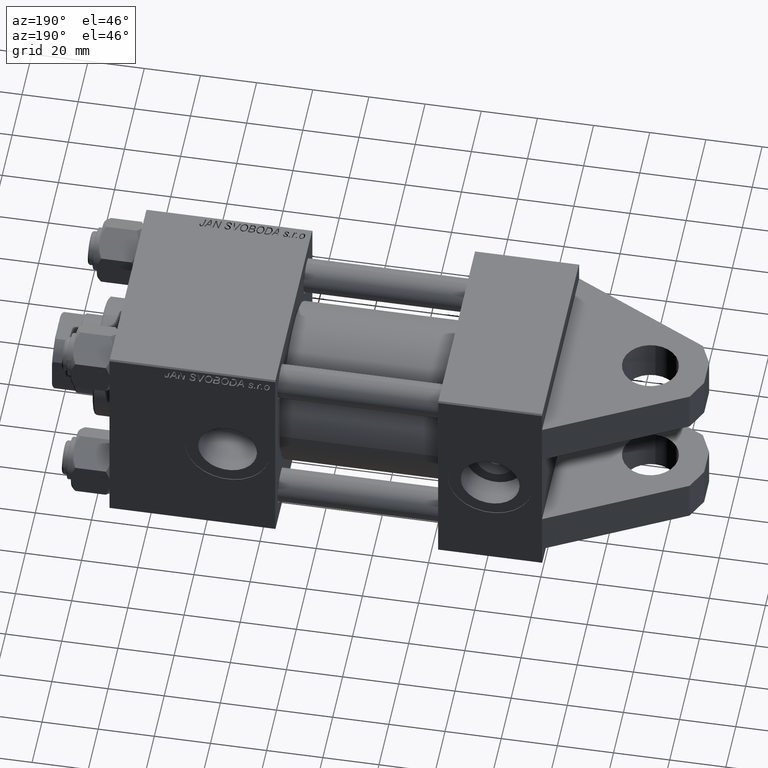
[diagram: clean part render]
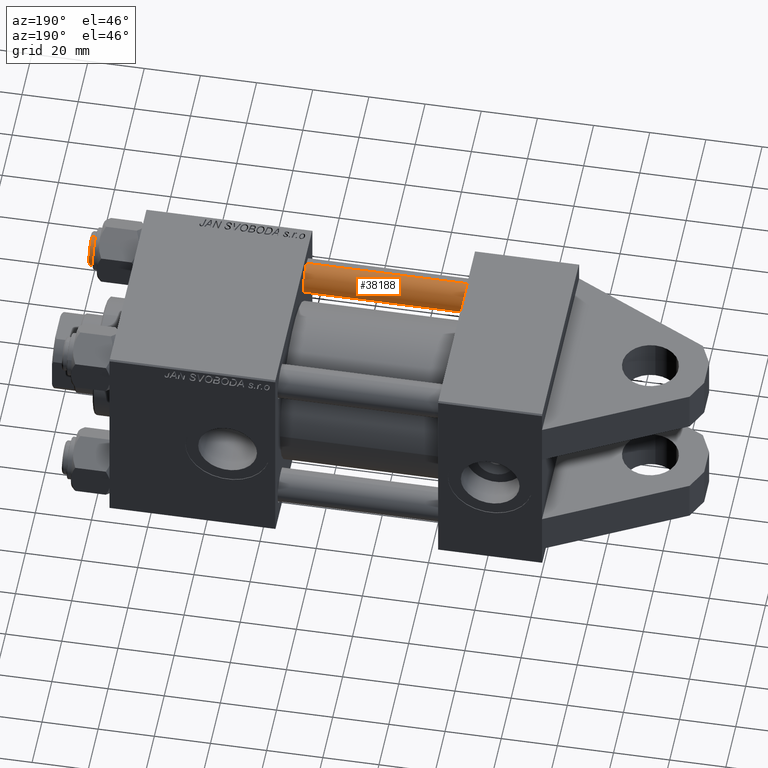
[diagram: same view with one face highlighted and labeled with its STEP entity id]
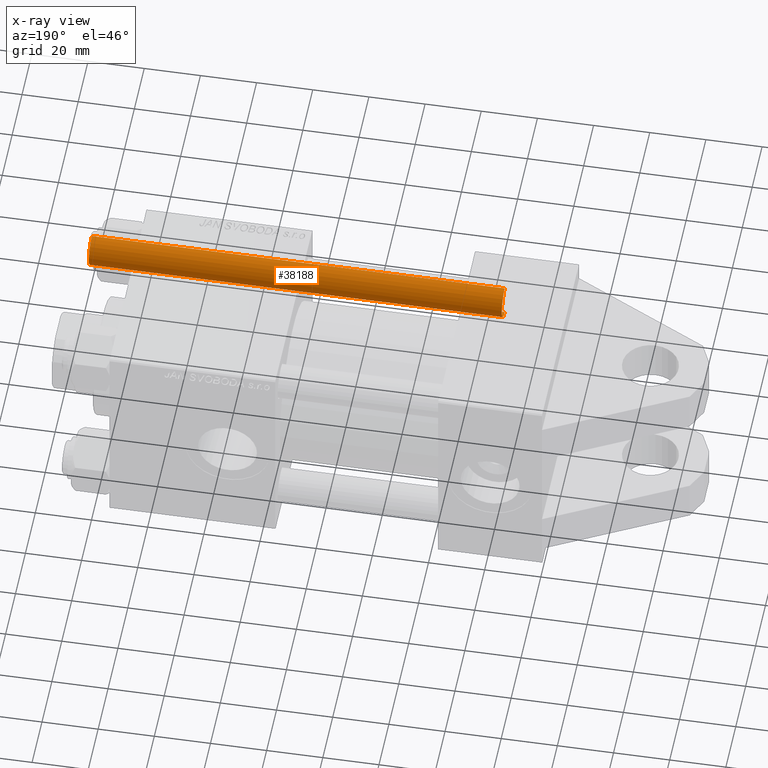
[diagram: x-ray of the same camera — body ghosted, the highlighted face saturated]
A machine part, auxiliary view. The second image highlights one B-rep face of the part: STEP entity #38188.
The next image is the same camera in x-ray: the body ghosted, the highlighted face saturated — about 0% of this face is hidden behind the body in this view.
In plain terms, the highlighted cylindrical surface (edge-blend (fillet) strip) has radius 6 mm, axis along (1, 0, 0).
Its self-contained STEP definition (entity closure, byte-faithful):
#817 = VECTOR ( 'NONE', #7151, 1000.000000000000000 ) ;
#3684 = DIRECTION ( 'NONE',  ( -0.000000000000000000, -0.000000000000000000, 1.000000000000000000 ) ) ;
#5804 = CARTESIAN_POINT ( 'NONE',  ( 0.000000000000000000, 0.000000000000000000, 147.5000000000000000 ) ) ;
#6967 = EDGE_LOOP ( 'NONE', ( #13263, #48382, #50579, #44360 ) ) ;
#6968 = DIRECTION ( 'NONE',  ( -1.000000000000000000, 0.000000000000000000, 0.000000000000000000 ) ) ;
#7151 = DIRECTION ( 'NONE',  ( -0.000000000000000000, -0.000000000000000000, -1.000000000000000000 ) ) ;
#7218 = DIRECTION ( 'NONE',  ( -0.000000000000000000, -0.000000000000000000, -1.000000000000000000 ) ) ;
#11239 = VERTEX_POINT ( 'NONE', #35937 ) ;
#11745 = CARTESIAN_POINT ( 'NONE',  ( 0.000000000000000000, 0.000000000000000000, 0.5000000000000281997 ) ) ;
#13263 = ORIENTED_EDGE ( 'NONE', *, *, #24427, .F. ) ;
#13859 = DIRECTION ( 'NONE',  ( 0.000000000000000000, 0.000000000000000000, -1.000000000000000000 ) ) ;
#15027 = CYLINDRICAL_SURFACE ( 'NONE', #44600, 6.000000000000000888 ) ;
#15689 = VERTEX_POINT ( 'NONE', #37794 ) ;
#17514 = EDGE_CURVE ( 'NONE', #18928, #15689, #49347, .T. ) ;
#18268 = DIRECTION ( 'NONE',  ( 1.000000000000000000, 0.000000000000000000, 0.000000000000000000 ) ) ;
#18928 = VERTEX_POINT ( 'NONE', #33868 ) ;
#19056 = AXIS2_PLACEMENT_3D ( 'NONE', #11745, #3684, #43977 ) ;
#22555 = CIRCLE ( 'NONE', #27547, 6.000000000000000888 ) ;
#24427 = EDGE_CURVE ( 'NONE', #48177, #11239, #26482, .T. ) ;
#26464 = FACE_OUTER_BOUND ( 'NONE', #6967, .T. ) ;
#26482 = LINE ( 'NONE', #34977, #817 ) ;
#27547 = AXIS2_PLACEMENT_3D ( 'NONE', #5804, #13859, #18268 ) ;
#32025 = EDGE_CURVE ( 'NONE', #48177, #18928, #22555, .T. ) ;
#33868 = CARTESIAN_POINT ( 'NONE',  ( -6.000000000000000888, 0.000000000000000000, 147.5000000000000000 ) ) ;
#34977 = CARTESIAN_POINT ( 'NONE',  ( 6.000000000000000888, 7.347880794884120722E-16, 148.0000000000000000 ) ) ;
#35937 = CARTESIAN_POINT ( 'NONE',  ( 6.000000000000000888, 7.347880794884120722E-16, 0.5000000000000281997 ) ) ;
#37388 = DIRECTION ( 'NONE',  ( -0.000000000000000000, -0.000000000000000000, -1.000000000000000000 ) ) ;
#37794 = CARTESIAN_POINT ( 'NONE',  ( -6.000000000000000888, 0.000000000000000000, 0.5000000000000281997 ) ) ;
#38188 = ADVANCED_FACE ( 'NONE', ( #26464 ), #15027, .T. ) ;
#39831 = CIRCLE ( 'NONE', #19056, 6.000000000000000888 ) ;
#42956 = VECTOR ( 'NONE', #37388, 1000.000000000000000 ) ;
#43977 = DIRECTION ( 'NONE',  ( 1.000000000000000000, 0.000000000000000000, 0.000000000000000000 ) ) ;
#44360 = ORIENTED_EDGE ( 'NONE', *, *, #47698, .T. ) ;
#44600 = AXIS2_PLACEMENT_3D ( 'NONE', #50133, #7218, #6968 ) ;
#44677 = CARTESIAN_POINT ( 'NONE',  ( -6.000000000000000888, 0.000000000000000000, 148.0000000000000000 ) ) ;
#47698 = EDGE_CURVE ( 'NONE', #15689, #11239, #39831, .T. ) ;
#48177 = VERTEX_POINT ( 'NONE', #51390 ) ;
#48382 = ORIENTED_EDGE ( 'NONE', *, *, #32025, .T. ) ;
#49347 = LINE ( 'NONE', #44677, #42956 ) ;
#50133 = CARTESIAN_POINT ( 'NONE',  ( 0.000000000000000000, 0.000000000000000000, 148.0000000000000000 ) ) ;
#50579 = ORIENTED_EDGE ( 'NONE', *, *, #17514, .T. ) ;
#51390 = CARTESIAN_POINT ( 'NONE',  ( 6.000000000000000888, 7.347880794884120722E-16, 147.5000000000000000 ) ) ;